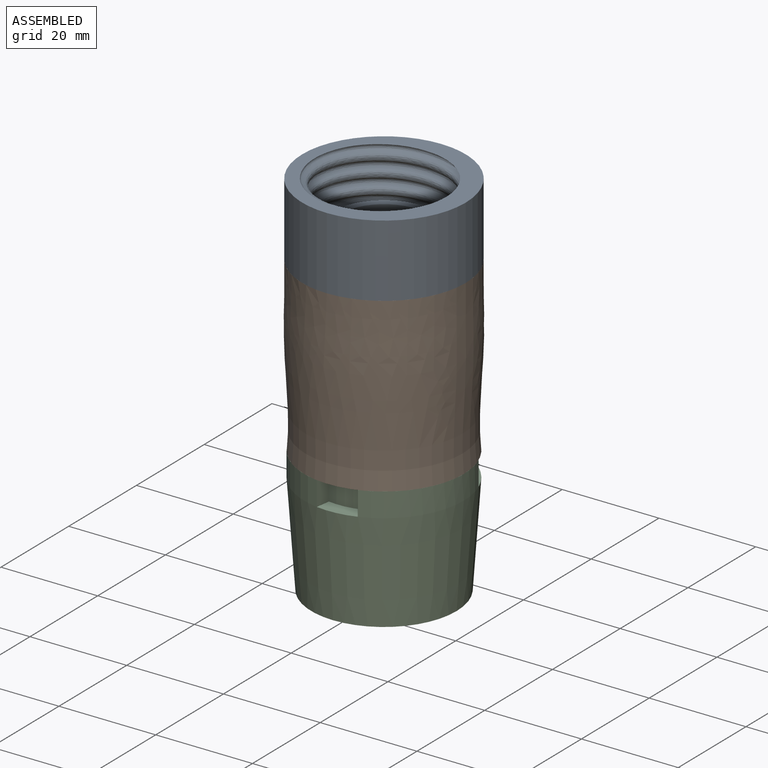
[diagram: assembled view]
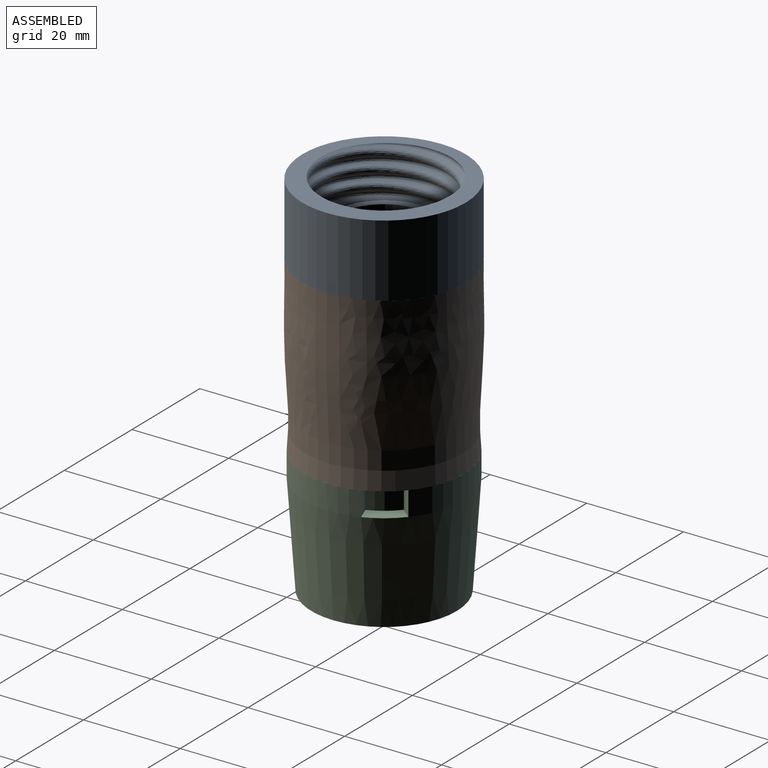
[diagram: assembled view, second angle]
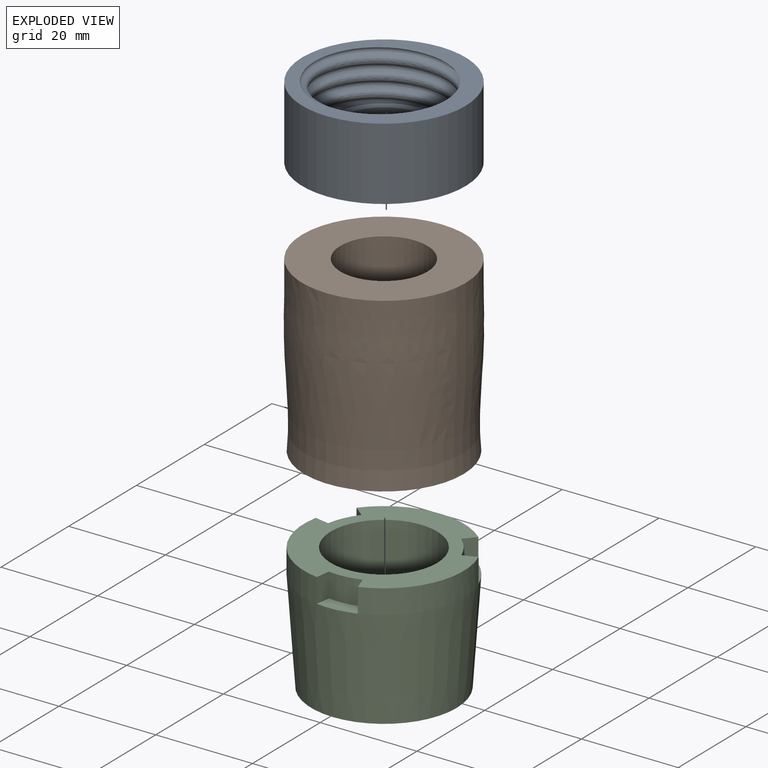
[diagram: exploded view]
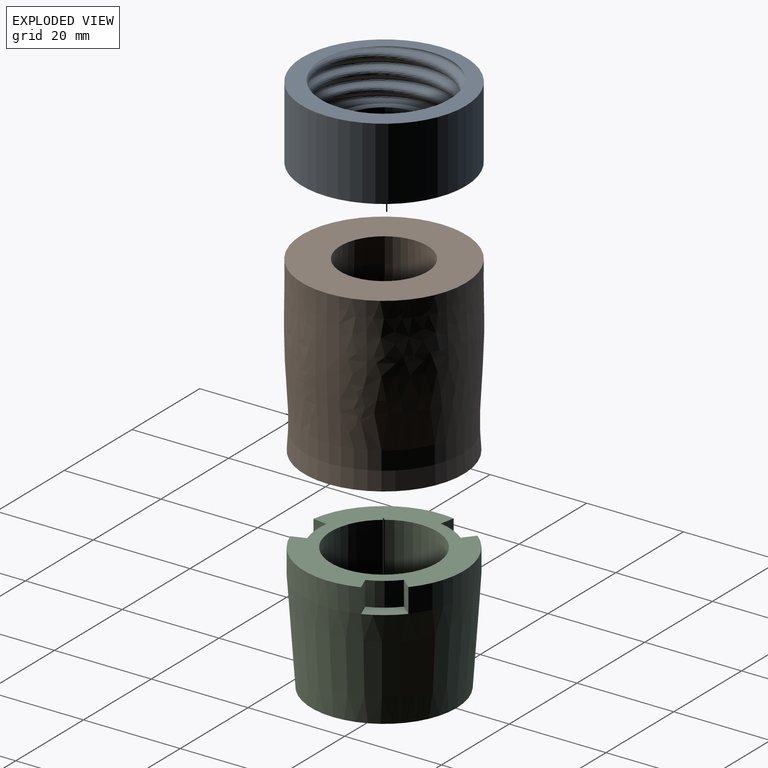
[diagram: exploded view, second angle]
ASSEMBLY  parts=3 mates=2
PART A: 15 faces, bbox 34.2x34.2x16.8 mm
  f0: cylinder r=12.9mm len=25.8mm, axis (0,0,1), area 148mm2, adj f1,f2,f6,f10,f11
  f1: plane 2.23x1.42mm, normal (0,1,0), area 1.8mm2, adj f0,f3,f7,f8,f9,f10,f11
  f2: bspline ~30.63x26.52mm, area 223.8mm2, adj f0,f3,f6,f11
  f3: bspline ~32.24x27.92mm, area 252.1mm2, adj f1,f2,f6,f7,f11
  f4: cylinder r=16.9mm len=33.8mm, axis (0,0,1), area 1592.8mm2, adj f5,f6
  f5: plane 33.8x33.8mm, normal (0,0,-1), area 642.8mm2, adj f4,f12
  f6: plane 34.13x34.13mm, normal (0,0,1), area 323.8mm2, adj f0,f2,f3,f4,f7,f8,f9,f10
  f7: bspline ~27.92x27.91mm, area 0.1mm2, adj f1,f3,f6,f8
  f8: bspline ~33.33x28.86mm, area 390.9mm2, adj f1,f6,f7,f9
  f9: bspline ~32.25x27.93mm, area 224.2mm2, adj f1,f6,f8,f10
  f10: bspline ~30.63x26.52mm, area 188.5mm2, adj f0,f1,f6,f9
  f11: plane 26.76x26.17mm, normal (0,0,1), area 108.5mm2, adj f0,f1,f2,f3,f13
  f12: cylinder r=9mm len=18mm, axis (0,0,-1), area 339.3mm2, adj f5,f14
  f13: cone r=12.5mm half-angle=18deg, axis (0,0,-1), area 218.8mm2, adj f11,f14
  f14: plane 21.1x21.1mm, normal (0,0,1), area 95.2mm2, adj f12,f13
PART B: 4 faces, bbox 33.9x33.9x35.8 mm
  f0: revolved ~35.8x33.94mm, area 3755.9mm2, adj f1,f3
  f1: plane 33.8x33.8mm, normal (0,0,1), area 642.8mm2, adj f0,f2
  f2: revolved ~35.8x23.36mm, area 2080.9mm2, adj f1,f3
  f3: plane 33x33mm, normal (0,0,-1), area 475.2mm2, adj f0,f2
PART C: 20 faces, bbox 33x33x26 mm
  f0: plane 7.96x3.77mm, normal (0,0,-1), area 22mm2, adj f2,f11,f12,f13
  f1: plane 7.82x5.67mm, normal (0,0,-1), area 22mm2, adj f2,f15,f16,f17
  f2: cone r=16.5mm half-angle=4deg, axis (0,0,-1), area 2085.3mm2, adj f0,f1,f4,f5,f14,f18,f19
  f3: cylinder r=11mm len=25mm, axis (0,0,-1), area 1727.9mm2, adj f6,f7
  f4: plane 30.06x30.06mm, normal (0,0,1), area 257.4mm2, adj f2,f6
  f5: plane 7.61x6.59mm, normal (0,0,-1), area 22mm2, adj f2,f8,f9,f10
  f6: cone r=11mm half-angle=45deg, axis (0,0,1), area 102.2mm2, adj f3,f4
  f7: plane 33x32.81mm, normal (0,0,-1), area 409.1mm2, adj f3,f8,f9,f10,f11,f12,f13,f14
  f8: cylinder r=13.5mm len=5.34mm, axis (0,0,1), area 33.1mm2, adj f5,f7,f9,f10
  f9: plane 5x2.28mm, normal (0.76,0.65,0), area 15mm2, adj f5,f7,f8,f19
  f10: plane 5x2.79mm, normal (-0.36,-0.93,0), area 15mm2, adj f5,f7,f8,f14
  f11: plane 5x2.97mm, normal (0.99,0.15,0), area 15mm2, adj f0,f7,f13,f18
  f12: plane 5x2.83mm, normal (-0.94,0.33,0), area 15mm2, adj f0,f7,f13,f14
  f13: cylinder r=13.5mm len=6.52mm, axis (0,0,1), area 33.1mm2, adj f0,f7,f11,f12
  f14: cylinder r=16.5mm len=21.57mm, axis (0,0,-1), area 132.4mm2, adj f2,f7,f10,f12
  f15: plane 5x2.34mm, normal (-0.62,0.78,0), area 15mm2, adj f1,f7,f17,f19
  f16: plane 5x2.95mm, normal (0.18,-0.98,0), area 15mm2, adj f1,f7,f17,f18
  f17: cylinder r=13.5mm len=5.95mm, axis (0,0,1), area 33.1mm2, adj f1,f7,f15,f16
  f18: cylinder r=16.5mm len=19.34mm, axis (0,0,-1), area 132.4mm2, adj f2,f7,f11,f16
  f19: cylinder r=16.5mm len=23.62mm, axis (0,0,-1), area 132.4mm2, adj f2,f7,f9,f15
PLACE A t=(2.21,15.67,14.35)mm
PLACE B t=(2.21,15.67,14.35)mm
PLACE C rot(axis=(1,0,0),180deg) t=(2.21,15.67,9.35)mm
MATE fastened C.f3 <-> B.f3  axis (0,0,1) through (2.21,15.67,14.35)mm
MATE fastened A.f4 <-> B.f1  axis (0,0,1) through (2.21,15.67,50.15)mm
